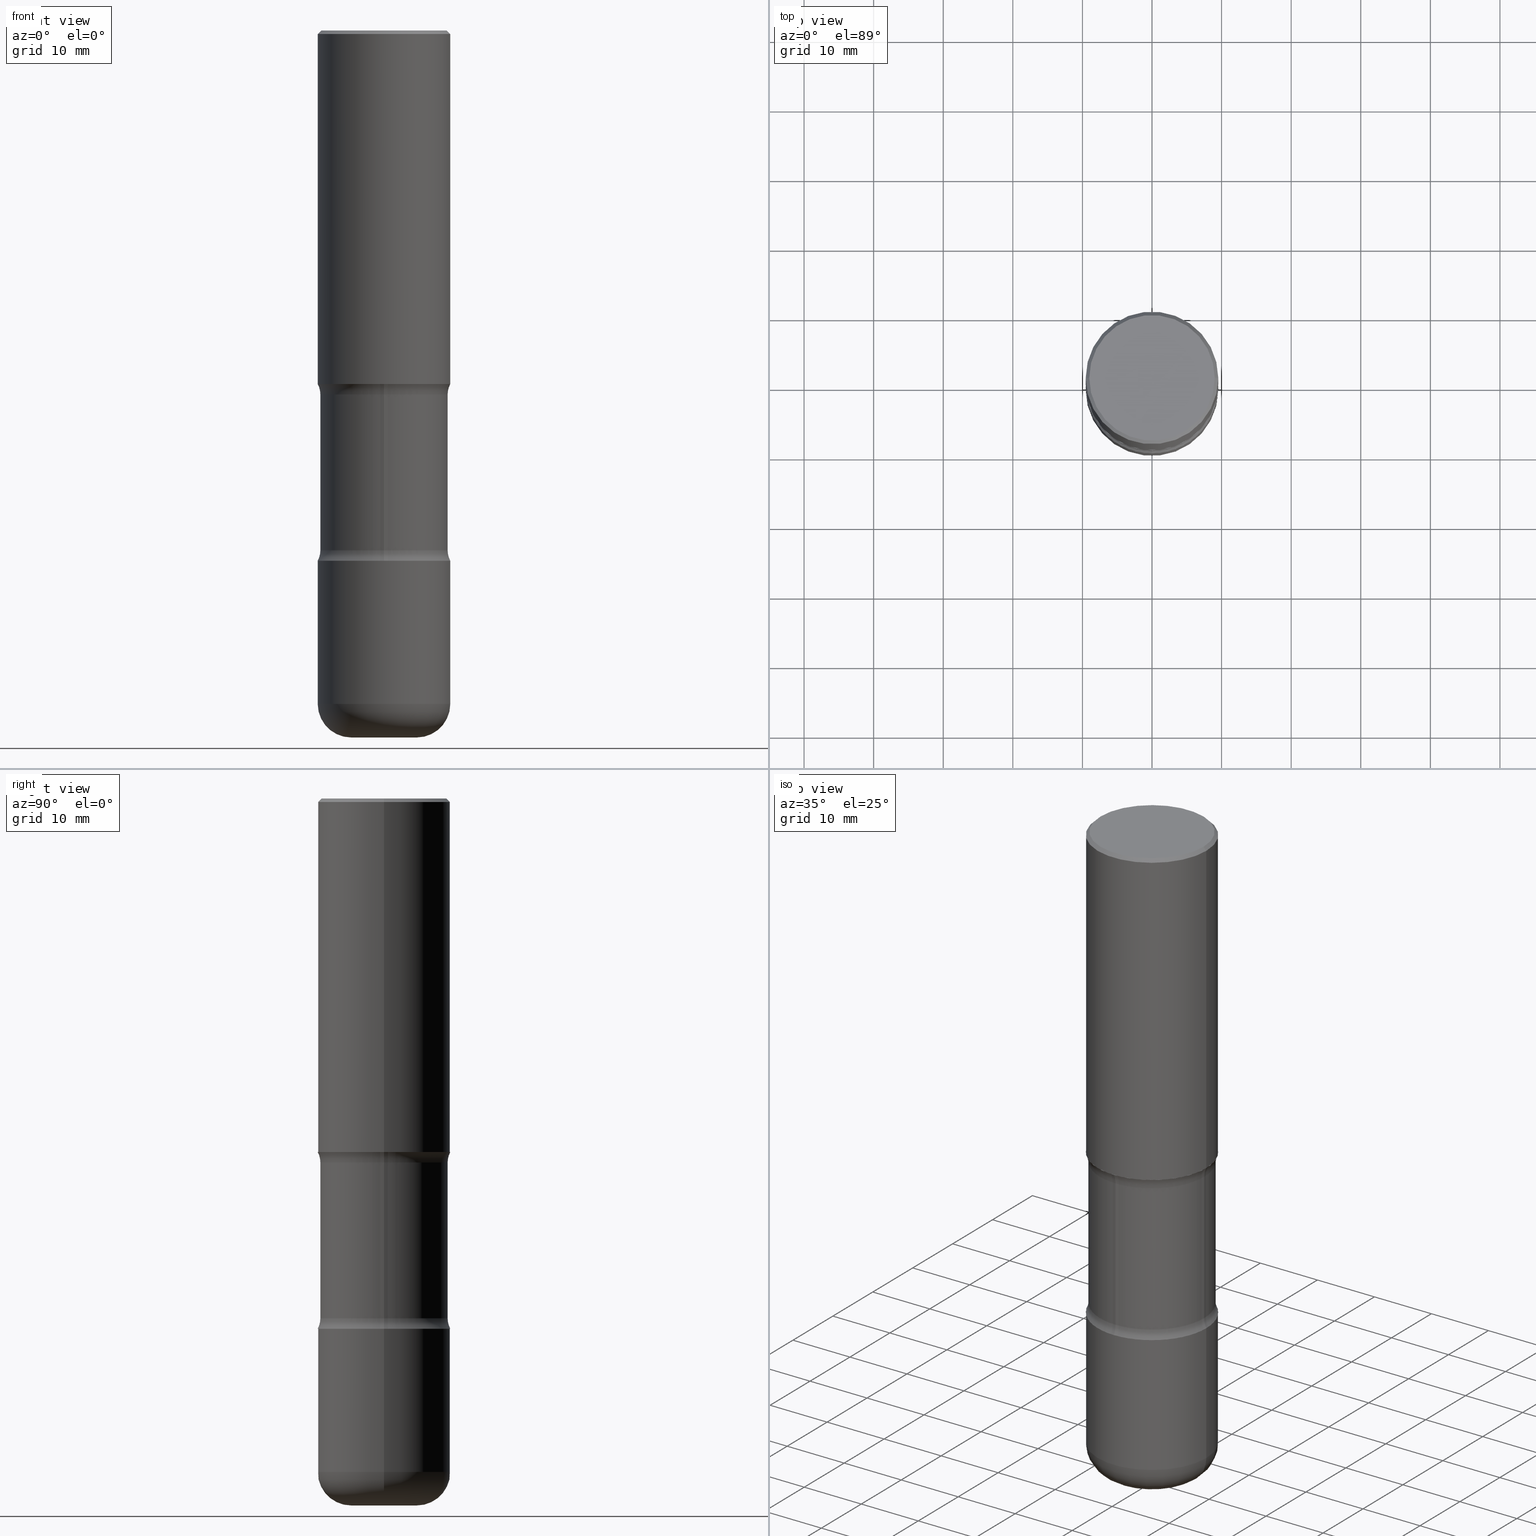
[diagram: canonical four-view strip — front | top / right | iso, engineering-drawing reading convention]
A machine part, canonical four-view strip (front | top / right | iso — engineering-drawing reading convention). The complete STEP part file that produces these views, byte-faithful:
ISO-10303-21;
HEADER;
FILE_DESCRIPTION (( 'STEP AP203' ),
    '1' );
FILE_NAME ('35803.STEP',
    '2023-03-11T07:11:10',
    ( '' ),
    ( '' ),
    'SwSTEP 2.0',
    'SolidWorks 2022',
    '' );
FILE_SCHEMA (( 'CONFIG_CONTROL_DESIGN' ));
ENDSEC;

DATA;
#1 = CARTESIAN_POINT ( 'NONE',  ( -0.3750000000000001110, -4.318427418585914679E-15, -2.000000000000000000 ) ) ;
#2 = ADVANCED_FACE ( 'NONE', ( #160 ), #32, .F. ) ;
#3 = ORIENTED_EDGE ( 'NONE', *, *, #490, .F. ) ;
#4 = DIRECTION ( 'NONE',  ( 1.000000000000000000, -6.982962677686265922E-15, 4.876176775795935793E-29 ) ) ;
#5 = PLANE ( 'NONE',  #312 ) ;
#6 = ORIENTED_EDGE ( 'NONE', *, *, #333, .T. ) ;
#7 = CIRCLE ( 'NONE', #339, 0.3599999999999998757 ) ;
#8 = DIRECTION ( 'NONE',  ( 2.438088387897960049E-29, -3.491481338843145188E-15, -1.000000000000000000 ) ) ;
#9 = VECTOR ( 'NONE', #82, 39.37007874015748143 ) ;
#10 = CARTESIAN_POINT ( 'NONE',  ( 9.772172410070132051E-29, -1.394379795992991707E-14, -3.994849186499966898 ) ) ;
#11 = ORIENTED_EDGE ( 'NONE', *, *, #389, .T. ) ;
#12 = FACE_OUTER_BOUND ( 'NONE', #55, .T. ) ;
#13 = FACE_OUTER_BOUND ( 'NONE', #21, .T. ) ;
#14 = ORIENTED_EDGE ( 'NONE', *, *, #197, .F. ) ;
#15 = ADVANCED_BREP_SHAPE_REPRESENTATION ( '35803', ( #404, #390, #625, #655, #673 ), #647 ) ;
#16 = MECHANICAL_CONTEXT ( 'NONE', #438, 'mechanical' ) ;
#17 = DIRECTION ( 'NONE',  ( 0.9993908270190957621, -6.978169709227539121E-15, -0.03489949670250019204 ) ) ;
#18 = ORIENTED_EDGE ( 'NONE', *, *, #138, .T. ) ;
#19 = FACE_OUTER_BOUND ( 'NONE', #216, .T. ) ;
#20 = APPROVAL_STATUS ( 'not_yet_approved' ) ;
#21 = EDGE_LOOP ( 'NONE', ( #716, #76, #587, #560 ) ) ;
#22 = CIRCLE ( 'NONE', #767, 0.3599999999999999312 ) ;
#23 = CONICAL_SURFACE ( 'NONE', #324, 1127.411546571505596, 1.535889741755010807 ) ;
#24 = SECURITY_CLASSIFICATION ( '', '', #428 ) ;
#25 = ADVANCED_FACE ( 'NONE', ( #155 ), #468, .T. ) ;
#26 = ORIENTED_EDGE ( 'NONE', *, *, #90, .T. ) ;
#27 = CALENDAR_DATE ( 2023, 11, 3 ) ;
#28 = DIRECTION ( 'NONE',  ( -1.000000000000000000, 6.982962677686266711E-15, 0.000000000000000000 ) ) ;
#29 = EDGE_CURVE ( 'NONE', #731, #620, #294, .T. ) ;
#30 = VERTEX_POINT ( 'NONE', #412 ) ;
#31 = ORIENTED_EDGE ( 'NONE', *, *, #333, .F. ) ;
#32 = TOROIDAL_SURFACE ( 'NONE', #110, 0.4849999999999998757, 0.1250000000000000000 ) ;
#33 = EDGE_CURVE ( 'NONE', #705, #444, #482, .T. ) ;
#34 = AXIS2_PLACEMENT_3D ( 'NONE', #741, #183, #770 ) ;
#35 = AXIS2_PLACEMENT_3D ( 'NONE', #495, #57, #434 ) ;
#36 = DIRECTION ( 'NONE',  ( 1.000000000000000000, -6.982962677686266711E-15, 0.000000000000000000 ) ) ;
#37 = ORIENTED_EDGE ( 'NONE', *, *, #631, .T. ) ;
#38 = DIRECTION ( 'NONE',  ( -2.445468806185136877E-29, 3.491481338843145188E-15, 1.000000000000000000 ) ) ;
#39 = EDGE_LOOP ( 'NONE', ( #757, #508, #301, #769 ) ) ;
#40 = DIRECTION ( 'NONE',  ( -6.982962677686266711E-15, -1.000000000000000000, 3.491481338843145583E-15 ) ) ;
#41 = CARTESIAN_POINT ( 'NONE',  ( 7.336406418555408669E-29, -1.047444401652943478E-14, -2.999999999999999556 ) ) ;
#42 = CYLINDRICAL_SURFACE ( 'NONE', #271, 0.3750000000000000555 ) ;
#43 = CIRCLE ( 'NONE', #511, 0.3599999999999998757 ) ;
#44 = AXIS2_PLACEMENT_3D ( 'NONE', #735, #530, #365 ) ;
#45 = CALENDAR_DATE ( 2023, 11, 3 ) ;
#46 = AXIS2_PLACEMENT_3D ( 'NONE', #175, #227, #291 ) ;
#47 = EDGE_CURVE ( 'NONE', #652, #566, #451, .T. ) ;
#48 = VERTEX_POINT ( 'NONE', #118 ) ;
#49 = DIRECTION ( 'NONE',  ( 1.000000000000000000, -6.982962677686265922E-15, 4.876231632511992107E-29 ) ) ;
#50 = DIRECTION ( 'NONE',  ( -2.445468806185136597E-29, 3.491481338843145583E-15, 1.000000000000000000 ) ) ;
#51 = ORIENTED_EDGE ( 'NONE', *, *, #376, .F. ) ;
#52 = DIRECTION ( 'NONE',  ( 2.448377125465744019E-29, -3.487316460102062312E-15, -1.000000000000000000 ) ) ;
#53 = EDGE_CURVE ( 'NONE', #282, #623, #751, .T. ) ;
#54 = FACE_OUTER_BOUND ( 'NONE', #395, .T. ) ;
#55 = EDGE_LOOP ( 'NONE', ( #193, #561, #678, #127 ) ) ;
#56 = DIRECTION ( 'NONE',  ( 7.105427357601001859E-15, 1.000000000000000000, -3.491481338843145583E-15 ) ) ;
#57 = DIRECTION ( 'NONE',  ( -2.445468806185136597E-29, 3.491481338843145583E-15, 1.000000000000000000 ) ) ;
#58 = PERSON_AND_ORGANIZATION ( #633, #114 ) ;
#59 = AXIS2_PLACEMENT_3D ( 'NONE', #364, #368, #107 ) ;
#60 = AXIS2_PLACEMENT_3D ( 'NONE', #335, #331, #636 ) ;
#61 = EDGE_LOOP ( 'NONE', ( #89, #145 ) ) ;
#62 = DIRECTION ( 'NONE',  ( 6.982962677686265133E-15, 1.000000000000000000, -3.035386659626959526E-15 ) ) ;
#63 = DIRECTION ( 'NONE',  ( 2.438088387897960049E-29, -3.491481338843145188E-15, -1.000000000000000000 ) ) ;
#64 = ORIENTED_EDGE ( 'NONE', *, *, #764, .F. ) ;
#65 = COORDINATED_UNIVERSAL_TIME_OFFSET ( 5, 0, .BEHIND. ) ;
#66 = EDGE_LOOP ( 'NONE', ( #88, #701 ) ) ;
#67 = DIRECTION ( 'NONE',  ( 1.000000000000000000, -6.860497997771530774E-15, 4.840849884678333879E-29 ) ) ;
#68 = CARTESIAN_POINT ( 'NONE',  ( 5.036129278209386779E-29, -7.190257896725955672E-15, -2.059371710435190295 ) ) ;
#69 = ORIENTED_EDGE ( 'NONE', *, *, #662, .T. ) ;
#70 = CARTESIAN_POINT ( 'NONE',  ( 0.000000000000000000, 0.000000000000000000, 0.000000000000000000 ) ) ;
#71 = DIRECTION ( 'NONE',  ( 1.000000000000000000, -6.982962677686265133E-15, 4.883557194083112340E-29 ) ) ;
#72 = CC_DESIGN_PERSON_AND_ORGANIZATION_ASSIGNMENT ( #214, #581, ( #776 ) ) ;
#73 = ORIENTED_EDGE ( 'NONE', *, *, #349, .F. ) ;
#74 = DIRECTION ( 'NONE',  ( 6.982962677686265922E-15, 1.000000000000000000, -3.642463991552350169E-15 ) ) ;
#75 = AXIS2_PLACEMENT_3D ( 'NONE', #363, #727, #591 ) ;
#76 = ORIENTED_EDGE ( 'NONE', *, *, #748, .T. ) ;
#77 = AXIS2_PLACEMENT_3D ( 'NONE', #377, #614, #492 ) ;
#78 = ORIENTED_EDGE ( 'NONE', *, *, #714, .T. ) ;
#79 = FACE_OUTER_BOUND ( 'NONE', #39, .T. ) ;
#80 = VERTEX_POINT ( 'NONE', #651 ) ;
#81 = ORIENTED_EDGE ( 'NONE', *, *, #805, .T. ) ;
#82 = DIRECTION ( 'NONE',  ( -2.445468806185136877E-29, 3.491481338843145188E-15, 1.000000000000000000 ) ) ;
#83 = ORIENTED_EDGE ( 'NONE', *, *, #534, .F. ) ;
#84 = CARTESIAN_POINT ( 'NONE',  ( 4.888029293089666332E-29, -6.987127556427373647E-15, -2.000000000000000000 ) ) ;
#85 = AXIS2_PLACEMENT_3D ( 'NONE', #277, #295, #783 ) ;
#86 = AXIS2_PLACEMENT_3D ( 'NONE', #710, #207, #340 ) ;
#87 = CARTESIAN_POINT ( 'NONE',  ( 4.890937612370292426E-31, -6.982962677686317493E-17, -0.02000000000000007674 ) ) ;
#88 = ORIENTED_EDGE ( 'NONE', *, *, #486, .T. ) ;
#89 = ORIENTED_EDGE ( 'NONE', *, *, #162, .F. ) ;
#90 = EDGE_CURVE ( 'NONE', #30, #222, #140, .T. ) ;
#91 = DIRECTION ( 'NONE',  ( 1.000000000000000000, -6.982962677686271444E-15, 0.000000000000000000 ) ) ;
#92 = EDGE_CURVE ( 'NONE', #464, #583, #176, .T. ) ;
#93 = ORIENTED_EDGE ( 'NONE', *, *, #211, .F. ) ;
#94 = AXIS2_PLACEMENT_3D ( 'NONE', #104, #356, #239 ) ;
#95 = CIRCLE ( 'NONE', #35, 0.1850000000000001088 ) ;
#96 = LOCAL_TIME ( 2, 11, 10.00000000000000000, #224 ) ;
#97 = CARTESIAN_POINT ( 'NONE',  ( 7.336406418555408669E-29, -1.047444401652943478E-14, -2.999999999999999556 ) ) ;
#98 = DIRECTION ( 'NONE',  ( -2.445468806185136597E-29, 3.491481338843145583E-15, 1.000000000000000000 ) ) ;
#99 = DIRECTION ( 'NONE',  ( -2.445468806185136597E-29, 3.491481338843145583E-15, 1.000000000000000000 ) ) ;
#100 = DIRECTION ( 'NONE',  ( -6.982962677686264344E-15, -1.000000000000000000, 0.000000000000000000 ) ) ;
#101 = VERTEX_POINT ( 'NONE', #540 ) ;
#102 = CARTESIAN_POINT ( 'NONE',  ( 0.4849999999999998757, -1.365388569616761104E-14, -2.940628289564810149 ) ) ;
#103 = CARTESIAN_POINT ( 'NONE',  ( 9.780897367911954317E-29, -1.393130332370666569E-14, -3.994849186499966898 ) ) ;
#104 = CARTESIAN_POINT ( 'NONE',  ( 9.317236151565370389E-29, -1.330254390099238573E-14, -3.810000000000000053 ) ) ;
#105 = PERSON_AND_ORGANIZATION_ROLE ( 'classification_officer' ) ;
#106 = EDGE_LOOP ( 'NONE', ( #6, #435 ) ) ;
#107 = DIRECTION ( 'NONE',  ( 6.982962677686265922E-15, 1.000000000000000000, -3.487316460102062312E-15 ) ) ;
#108 = DIRECTION ( 'NONE',  ( 1.000000000000000000, -6.982962677686265922E-15, 4.876176775795935793E-29 ) ) ;
#109 = ADVANCED_FACE ( 'NONE', ( #785 ), #753, .T. ) ;
#110 = AXIS2_PLACEMENT_3D ( 'NONE', #578, #405, #524 ) ;
#111 = AXIS2_PLACEMENT_3D ( 'NONE', #733, #316, #667 ) ;
#112 = CIRCLE ( 'NONE', #86, 0.1250000000000000278 ) ;
#113 = CARTESIAN_POINT ( 'NONE',  ( 7.191214752716296204E-29, -1.026714879748977264E-14, -2.940628289564810149 ) ) ;
#114 = ORGANIZATION ( 'UNSPECIFIED', 'UNSPECIFIED', '' ) ;
#115 = ORIENTED_EDGE ( 'NONE', *, *, #534, .T. ) ;
#116 = CARTESIAN_POINT ( 'NONE',  ( -1.663806245058922101E-17, -1.394794138615735415E-14, -3.994849186499966898 ) ) ;
#117 = CARTESIAN_POINT ( 'NONE',  ( 7.191042080826115211E-29, -1.026739607346438549E-14, -2.940628289564810149 ) ) ;
#118 = CARTESIAN_POINT ( 'NONE',  ( -0.1850000000000001088, -1.164471496805420174E-14, -4.000000000000000888 ) ) ;
#119 = CARTESIAN_POINT ( 'NONE',  ( -0.4849999999999998757, -6.821016529053286828E-15, -2.940628289564810149 ) ) ;
#120 = DIRECTION ( 'NONE',  ( -2.445468806185136597E-29, 3.491481338843145583E-15, 1.000000000000000000 ) ) ;
#121 = ORIENTED_EDGE ( 'NONE', *, *, #490, .T. ) ;
#122 = CARTESIAN_POINT ( 'NONE',  ( 0.000000000000000000, 0.000000000000000000, 0.000000000000000000 ) ) ;
#123 = FACE_OUTER_BOUND ( 'NONE', #761, .T. ) ;
#124 = PERSON_AND_ORGANIZATION_ROLE ( 'design_supplier' ) ;
#125 = AXIS2_PLACEMENT_3D ( 'NONE', #119, #56, #232 ) ;
#126 = AXIS2_PLACEMENT_3D ( 'NONE', #270, #706, #379 ) ;
#127 = ORIENTED_EDGE ( 'NONE', *, *, #172, .F. ) ;
#128 = CARTESIAN_POINT ( 'NONE',  ( 0.3599999999999998757, -9.704124460693012319E-15, -2.059371710435190295 ) ) ;
#129 = APPROVAL_PERSON_ORGANIZATION ( #279, #477, #548 ) ;
#130 = CARTESIAN_POINT ( 'NONE',  ( 5.036129278209386779E-29, -7.190257896725955672E-15, -2.059371710435190295 ) ) ;
#131 = ORIENTED_EDGE ( 'NONE', *, *, #280, .F. ) ;
#132 = DIRECTION ( 'NONE',  ( 1.000000000000000000, -6.982962677686264344E-15, 0.000000000000000000 ) ) ;
#133 = EDGE_CURVE ( 'NONE', #48, #282, #801, .T. ) ;
#134 = ORIENTED_EDGE ( 'NONE', *, *, #381, .F. ) ;
#135 = CYLINDRICAL_SURFACE ( 'NONE', #126, 0.3749999999999998335 ) ;
#136 = CARTESIAN_POINT ( 'NONE',  ( 2.478951750578622237E-15, 0.3549999999999997047, -1.233073106554165014E-15 ) ) ;
#137 = CLOSED_SHELL ( 'NONE', ( #522, #599, #527, #799, #318, #421, #2, #660 ) ) ;
#138 = EDGE_CURVE ( 'NONE', #796, #290, #564, .T. ) ;
#139 = VERTEX_POINT ( 'NONE', #226 ) ;
#140 = CIRCLE ( 'NONE', #359, 0.1250000000000001110 ) ;
#141 = FACE_OUTER_BOUND ( 'NONE', #698, .T. ) ;
#142 = CIRCLE ( 'NONE', #689, 0.3750000000000000555 ) ;
#143 = DIRECTION ( 'NONE',  ( 1.000000000000000000, -6.982962677686266711E-15, 0.000000000000000000 ) ) ;
#144 = EDGE_LOOP ( 'NONE', ( #382, #166, #480, #51 ) ) ;
#145 = ORIENTED_EDGE ( 'NONE', *, *, #717, .F. ) ;
#146 = CARTESIAN_POINT ( 'NONE',  ( -2.572686749164250972E-15, -0.3750000000000104361, -2.999999999999998668 ) ) ;
#147 = PERSON_AND_ORGANIZATION_ROLE ( 'design_owner' ) ;
#148 = ORIENTED_EDGE ( 'NONE', *, *, #173, .T. ) ;
#149 = LINE ( 'NONE', #352, #535 ) ;
#150 = ORIENTED_EDGE ( 'NONE', *, *, #692, .F. ) ;
#151 = ADVANCED_FACE ( 'NONE', ( #337 ), #206, .T. ) ;
#152 = LINE ( 'NONE', #766, #9 ) ;
#153 = PERSON_AND_ORGANIZATION ( #633, #114 ) ;
#154 = CALENDAR_DATE ( 2023, 11, 3 ) ;
#155 = FACE_OUTER_BOUND ( 'NONE', #529, .T. ) ;
#156 = PERSON_AND_ORGANIZATION ( #633, #114 ) ;
#157 = CIRCLE ( 'NONE', #179, 0.3750000000000000555 ) ;
#158 = CIRCLE ( 'NONE', #659, 0.3599999999999998757 ) ;
#159 = DIRECTION ( 'NONE',  ( -2.445468806185136597E-29, 3.491481338843145583E-15, 1.000000000000000000 ) ) ;
#160 = FACE_OUTER_BOUND ( 'NONE', #504, .T. ) ;
#161 =( CONVERSION_BASED_UNIT ( 'INCH', #466 ) LENGTH_UNIT ( ) NAMED_UNIT ( #252 ) );
#162 = EDGE_CURVE ( 'NONE', #80, #755, #269, .T. ) ;
#163 = EDGE_CURVE ( 'NONE', #652, #705, #585, .T. ) ;
#164 = ORIENTED_EDGE ( 'NONE', *, *, #133, .F. ) ;
#165 = CALENDAR_DATE ( 2023, 11, 3 ) ;
#166 = ORIENTED_EDGE ( 'NONE', *, *, #219, .T. ) ;
#167 = CARTESIAN_POINT ( 'NONE',  ( -0.3599999999999998757, -4.425008828949931380E-15, -2.000000000000000000 ) ) ;
#168 = CARTESIAN_POINT ( 'NONE',  ( 0.1850000000000001088, -1.525777345074454388E-14, -4.000000000000000888 ) ) ;
#169 = AXIS2_PLACEMENT_3D ( 'NONE', #613, #313, #686 ) ;
#170 = CIRCLE ( 'NONE', #611, 0.1850000000000001088 ) ;
#171 = DIRECTION ( 'NONE',  ( 1.000000000000000000, -6.982962677686266711E-15, 0.000000000000000000 ) ) ;
#172 = EDGE_CURVE ( 'NONE', #652, #347, #149, .T. ) ;
#173 = EDGE_CURVE ( 'NONE', #634, #101, #575, .T. ) ;
#174 = DIRECTION ( 'NONE',  ( -2.445468806185136597E-29, 3.491481338843145583E-15, 1.000000000000000000 ) ) ;
#175 = CARTESIAN_POINT ( 'NONE',  ( 0.1850000000000000810, -1.459439199636434413E-14, -3.810000000000000053 ) ) ;
#176 = LINE ( 'NONE', #299, #576 ) ;
#177 = DIRECTION ( 'NONE',  ( 2.448377125465743738E-29, -3.487316460102062312E-15, -1.000000000000000000 ) ) ;
#178 = CYLINDRICAL_SURFACE ( 'NONE', #594, 0.3599999999999998757 ) ;
#179 = AXIS2_PLACEMENT_3D ( 'NONE', #84, #758, #74 ) ;
#180 = TOROIDAL_SURFACE ( 'NONE', #452, 0.4849999999999998757, 0.1250000000000000555 ) ;
#181 = LOCAL_TIME ( 2, 11, 10.00000000000000000, #65 ) ;
#182 = ORIENTED_EDGE ( 'NONE', *, *, #748, .F. ) ;
#183 = DIRECTION ( 'NONE',  ( -2.445468806185136597E-29, 3.491481338843145583E-15, 1.000000000000000000 ) ) ;
#184 = CARTESIAN_POINT ( 'NONE',  ( 1.060475785271074914E-27, -1.514078366162024710E-13, -43.36492792665745100 ) ) ;
#185 = CC_DESIGN_DATE_AND_TIME_ASSIGNMENT ( #402, #649, ( #776 ) ) ;
#186 = EDGE_CURVE ( 'NONE', #566, #139, #510, .T. ) ;
#187 = EDGE_LOOP ( 'NONE', ( #378, #639 ) ) ;
#188 = LINE ( 'NONE', #116, #218 ) ;
#189 = CARTESIAN_POINT ( 'NONE',  ( 7.336406418555408669E-29, -1.047444401652943478E-14, -2.999999999999999556 ) ) ;
#190 = DIRECTION ( 'NONE',  ( -0.9993908270190957621, 6.856857904024558837E-15, -0.03489949670250019204 ) ) ;
#191 = AXIS2_PLACEMENT_3D ( 'NONE', #797, #558, #602 ) ;
#192 = AXIS2_PLACEMENT_3D ( 'NONE', #117, #483, #288 ) ;
#193 = ORIENTED_EDGE ( 'NONE', *, *, #47, .T. ) ;
#194 = CARTESIAN_POINT ( 'NONE',  ( -0.3749999999999999445, -7.809908757429059079E-15, -2.999999999999999556 ) ) ;
#195 = TOROIDAL_SURFACE ( 'NONE', #768, 0.4849999999999998757, 0.1250000000000000555 ) ;
#196 = DIRECTION ( 'NONE',  ( -6.982962677686265922E-15, -1.000000000000000000, 3.487316460102062312E-15 ) ) ;
#197 = EDGE_CURVE ( 'NONE', #642, #781, #309, .T. ) ;
#198 = ORIENTED_EDGE ( 'NONE', *, *, #29, .F. ) ;
#199 = DIRECTION ( 'NONE',  ( -2.445468806185136597E-29, 3.491481338843145583E-15, 1.000000000000000000 ) ) ;
#200 = FACE_OUTER_BOUND ( 'NONE', #671, .T. ) ;
#201 = ORIENTED_EDGE ( 'NONE', *, *, #714, .F. ) ;
#202 = CARTESIAN_POINT ( 'NONE',  ( -2.521233014180988041E-15, -0.3600000000000070366, -2.059371710435188518 ) ) ;
#203 = CARTESIAN_POINT ( 'NONE',  ( 0.3749999999999996669, -2.642516375941185662E-15, -0.02000000000000007674 ) ) ;
#204 = EDGE_CURVE ( 'NONE', #493, #583, #551, .T. ) ;
#205 = ORIENTED_EDGE ( 'NONE', *, *, #173, .F. ) ;
#206 = TOROIDAL_SURFACE ( 'NONE', #242, 0.1850000000000000810, 0.1900000000000001965 ) ;
#207 = DIRECTION ( 'NONE',  ( -1.000000000000000000, 6.982962677686265922E-15, -4.883557194083112340E-29 ) ) ;
#208 = TOROIDAL_SURFACE ( 'NONE', #75, 0.4849999999999998757, 0.1250000000000000000 ) ;
#209 = APPLICATION_PROTOCOL_DEFINITION ( 'international standard', 'config_control_design', 1994, #289 ) ;
#210 = DIRECTION ( 'NONE',  ( -2.445468806185136597E-29, 3.491481338843145583E-15, 1.000000000000000000 ) ) ;
#211 = EDGE_CURVE ( 'NONE', #681, #583, #22, .T. ) ;
#212 = EDGE_LOOP ( 'NONE', ( #432, #148, #457 ) ) ;
#213 = FACE_OUTER_BOUND ( 'NONE', #187, .T. ) ;
#214 = PERSON_AND_ORGANIZATION ( #633, #114 ) ;
#215 = DESIGN_CONTEXT ( 'detailed design', #289, 'design' ) ;
#216 = EDGE_LOOP ( 'NONE', ( #709, #330, #121, #772 ) ) ;
#217 = EDGE_LOOP ( 'NONE', ( #470, #326 ) ) ;
#218 = VECTOR ( 'NONE', #190, 39.37007874015748143 ) ;
#219 = EDGE_CURVE ( 'NONE', #566, #652, #413, .T. ) ;
#220 = TOROIDAL_SURFACE ( 'NONE', #539, 0.4849999999999998757, 0.1250000000000000000 ) ;
#221 = ORIENTED_EDGE ( 'NONE', *, *, #589, .T. ) ;
#222 = VERTEX_POINT ( 'NONE', #682 ) ;
#223 = CARTESIAN_POINT ( 'NONE',  ( 2.513866563967126856E-15, 0.3599999999999896616, -2.940628289564811038 ) ) ;
#224 = COORDINATED_UNIVERSAL_TIME_OFFSET ( 5, 0, .BEHIND. ) ;
#225 = DIRECTION ( 'NONE',  ( -2.445468806185136597E-29, 3.491481338843145583E-15, 1.000000000000000000 ) ) ;
#226 = CARTESIAN_POINT ( 'NONE',  ( -0.3599999999999998757, -4.475365733287755283E-15, -2.059371710435190295 ) ) ;
#227 = DIRECTION ( 'NONE',  ( -6.982962677686266711E-15, -1.000000000000000000, 3.491481338843145583E-15 ) ) ;
#228 = AXIS2_PLACEMENT_3D ( 'NONE', #248, #607, #49 ) ;
#229 = AXIS2_PLACEMENT_3D ( 'NONE', #621, #567, #629 ) ;
#230 = AXIS2_PLACEMENT_3D ( 'NONE', #189, #683, #196 ) ;
#231 = ADVANCED_FACE ( 'NONE', ( #430 ), #375, .F. ) ;
#232 = DIRECTION ( 'NONE',  ( -1.000000000000000000, 7.105427357601001859E-15, 0.000000000000000000 ) ) ;
#233 = DIRECTION ( 'NONE',  ( 1.000000000000000000, -6.982962677686265922E-15, 0.000000000000000000 ) ) ;
#234 = ORIENTED_EDGE ( 'NONE', *, *, #92, .T. ) ;
#235 = VERTEX_POINT ( 'NONE', #358 ) ;
#236 = DIRECTION ( 'NONE',  ( 1.000000000000000000, -6.982962677686267499E-15, 0.000000000000000000 ) ) ;
#237 = DIRECTION ( 'NONE',  ( -1.000000000000000000, 6.982962677686266711E-15, 0.000000000000000000 ) ) ;
#238 = EDGE_CURVE ( 'NONE', #347, #139, #43, .T. ) ;
#239 = DIRECTION ( 'NONE',  ( 1.000000000000000000, -6.982962677686269077E-15, 4.883557194083113462E-29 ) ) ;
#240 = CARTESIAN_POINT ( 'NONE',  ( 4.890937612370273194E-29, -6.982962677686291165E-15, -2.000000000000000000 ) ) ;
#241 = CARTESIAN_POINT ( 'NONE',  ( 0.3549999999999997047, -2.538996582575039076E-15, 1.280553747031877983E-17 ) ) ;
#242 = AXIS2_PLACEMENT_3D ( 'NONE', #726, #98, #536 ) ;
#243 = CONICAL_SURFACE ( 'NONE', #387, 0.3749999999999996669, 0.7853981633974458365 ) ;
#244 = CC_DESIGN_APPROVAL ( #574, ( #24 ) ) ;
#245 = EDGE_LOOP ( 'NONE', ( #657, #37 ) ) ;
#246 = DIRECTION ( 'NONE',  ( -2.438088387897960049E-29, 3.491481338843145188E-15, 1.000000000000000000 ) ) ;
#247 = FACE_OUTER_BOUND ( 'NONE', #217, .T. ) ;
#248 = CARTESIAN_POINT ( 'NONE',  ( -3.131554243005659264E-46, 4.471029511141341874E-32, 1.280553747030123384E-17 ) ) ;
#249 = CARTESIAN_POINT ( 'NONE',  ( -0.3750000000000000555, -9.223958699660533767E-15, -2.999999999999999556 ) ) ;
#250 = EDGE_LOOP ( 'NONE', ( #164, #78, #429, #338 ) ) ;
#251 = LINE ( 'NONE', #505, #439 ) ;
#252 = DIMENSIONAL_EXPONENTS ( 1.000000000000000000, 0.000000000000000000, 0.000000000000000000, 0.000000000000000000, 0.000000000000000000, 0.000000000000000000, 0.000000000000000000 ) ;
#253 = EDGE_CURVE ( 'NONE', #634, #532, #188, .T. ) ;
#254 = CARTESIAN_POINT ( 'NONE',  ( 4.890937612370273194E-29, -6.982962677686291165E-15, -2.000000000000000000 ) ) ;
#255 = AXIS2_PLACEMENT_3D ( 'NONE', #538, #305, #674 ) ;
#256 = ADVANCED_FACE ( 'NONE', ( #747 ), #433, .F. ) ;
#257 = ORIENTED_EDGE ( 'NONE', *, *, #162, .T. ) ;
#258 = CARTESIAN_POINT ( 'NONE',  ( 7.191214752716296204E-29, -1.026714879748977264E-14, -2.940628289564810149 ) ) ;
#259 = DIRECTION ( 'NONE',  ( 1.000000000000000000, -6.982962677686264344E-15, 0.000000000000000000 ) ) ;
#260 = ORIENTED_EDGE ( 'NONE', *, *, #163, .F. ) ;
#261 = CYLINDRICAL_SURFACE ( 'NONE', #485, 0.3599999999999998757 ) ;
#262 = DIRECTION ( 'NONE',  ( 2.448377125465743738E-29, -3.487316460102062312E-15, -1.000000000000000000 ) ) ;
#263 = EDGE_CURVE ( 'NONE', #367, #493, #669, .T. ) ;
#264 = ORIENTED_EDGE ( 'NONE', *, *, #266, .F. ) ;
#265 = DIRECTION ( 'NONE',  ( -2.445468806185136877E-29, 3.491481338843145188E-15, 1.000000000000000000 ) ) ;
#266 = EDGE_CURVE ( 'NONE', #235, #222, #471, .T. ) ;
#267 = CLOSED_SHELL ( 'NONE', ( #25, #760, #552, #704, #231, #794, #507, #707 ) ) ;
#268 = ORIENTED_EDGE ( 'NONE', *, *, #408, .F. ) ;
#269 = CIRCLE ( 'NONE', #398, 0.3750000000000000555 ) ;
#270 = CARTESIAN_POINT ( 'NONE',  ( 0.000000000000000000, 0.000000000000000000, 0.000000000000000000 ) ) ;
#271 = AXIS2_PLACEMENT_3D ( 'NONE', #668, #120, #108 ) ;
#272 = DIRECTION ( 'NONE',  ( 0.000000000000000000, 0.000000000000000000, 1.000000000000000000 ) ) ;
#273 = AXIS2_PLACEMENT_3D ( 'NONE', #553, #609, #450 ) ;
#274 = CARTESIAN_POINT ( 'NONE',  ( 1.663806245078460584E-17, -1.394794138615735415E-14, -3.994849186499966898 ) ) ;
#275 = ORIENTED_EDGE ( 'NONE', *, *, #805, .F. ) ;
#276 = CARTESIAN_POINT ( 'NONE',  ( -0.1474999999999999645, -1.293593836041385578E-14, -3.999999999999999556 ) ) ;
#277 = CARTESIAN_POINT ( 'NONE',  ( 4.890937612370273194E-29, -6.982962677686291165E-15, -2.000000000000000000 ) ) ;
#278 = DIRECTION ( 'NONE',  ( -2.445468806185136597E-29, 3.491481338843145583E-15, 1.000000000000000000 ) ) ;
#279 = PERSON_AND_ORGANIZATION ( #633, #114 ) ;
#280 = EDGE_CURVE ( 'NONE', #566, #444, #687, .T. ) ;
#281 = CARTESIAN_POINT ( 'NONE',  ( 3.386736898677888501E-15, 0.4849999999999927147, -2.059371710435191627 ) ) ;
#282 = VERTEX_POINT ( 'NONE', #307 ) ;
#283 = CLOSED_SHELL ( 'NONE', ( #386, #541, #528, #791, #467, #460 ) ) ;
#284 = AXIS2_PLACEMENT_3D ( 'NONE', #97, #520, #350 ) ;
#285 = CIRCLE ( 'NONE', #670, 0.3749999999999996669 ) ;
#286 = CC_DESIGN_SECURITY_CLASSIFICATION ( #24, ( #453 ) ) ;
#287 = DIRECTION ( 'NONE',  ( 2.448377125465743738E-29, -3.487316460102062312E-15, -1.000000000000000000 ) ) ;
#288 = DIRECTION ( 'NONE',  ( 6.982962677686265133E-15, 1.000000000000000000, -3.035386659626959526E-15 ) ) ;
#289 = APPLICATION_CONTEXT ( 'configuration controlled 3d designs of mechanical parts and assemblies' ) ;
#290 = VERTEX_POINT ( 'NONE', #550 ) ;
#291 = DIRECTION ( 'NONE',  ( 1.000000000000000000, -6.982962677686265133E-15, 0.000000000000000000 ) ) ;
#292 = PRODUCT_RELATED_PRODUCT_CATEGORY ( 'detail', '', ( #579 ) ) ;
#293 = DIRECTION ( 'NONE',  ( 7.105427357601001859E-15, 1.000000000000000000, -3.491481338843145583E-15 ) ) ;
#294 = CIRCLE ( 'NONE', #323, 0.3749999999999996669 ) ;
#295 = DIRECTION ( 'NONE',  ( -2.445468806185136597E-29, 3.491481338843145583E-15, 1.000000000000000000 ) ) ;
#296 = CARTESIAN_POINT ( 'NONE',  ( -0.3749999999999996669, 2.548781377355484352E-15, -0.02000000000000007674 ) ) ;
#297 = AXIS2_PLACEMENT_3D ( 'NONE', #724, #159, #36 ) ;
#298 = CIRCLE ( 'NONE', #192, 0.3599999999999999312 ) ;
#299 = CARTESIAN_POINT ( 'NONE',  ( -2.469779279197652534E-15, -0.3600000000000137534, -3.994849186499965565 ) ) ;
#300 = LOCAL_TIME ( 2, 11, 10.00000000000000000, #459 ) ;
#301 = ORIENTED_EDGE ( 'NONE', *, *, #376, .T. ) ;
#302 = LINE ( 'NONE', #542, #739 ) ;
#303 = DIRECTION ( 'NONE',  ( 1.000000000000000000, -6.982962677686265922E-15, 0.000000000000000000 ) ) ;
#304 = DIRECTION ( 'NONE',  ( -2.445468806185136597E-29, 3.491481338843145583E-15, 1.000000000000000000 ) ) ;
#305 = DIRECTION ( 'NONE',  ( 2.448377125465743738E-29, -3.487316460102062312E-15, -1.000000000000000000 ) ) ;
#306 = ADVANCED_FACE ( 'NONE', ( #679 ), #491, .T. ) ;
#307 = CARTESIAN_POINT ( 'NONE',  ( -0.3750000000000001110, -1.063800864189200846E-14, -3.810000000000000053 ) ) ;
#308 = DIRECTION ( 'NONE',  ( -2.445468806185136597E-29, 3.491481338843145583E-15, 1.000000000000000000 ) ) ;
#309 = CIRCLE ( 'NONE', #788, 0.3549999999999997047 ) ;
#310 = CIRCLE ( 'NONE', #512, 0.3750000000000000555 ) ;
#311 = PERSON_AND_ORGANIZATION ( #633, #114 ) ;
#312 = AXIS2_PLACEMENT_3D ( 'NONE', #136, #63, #384 ) ;
#313 = DIRECTION ( 'NONE',  ( 2.438088387897960049E-29, -3.491481338843145188E-15, -1.000000000000000000 ) ) ;
#314 = CARTESIAN_POINT ( 'NONE',  ( 0.3749999999999996669, -2.642516375941185662E-15, -0.02000000000000007674 ) ) ;
#315 = ORIENTED_EDGE ( 'NONE', *, *, #238, .T. ) ;
#316 = DIRECTION ( 'NONE',  ( -2.445468806185136597E-29, 3.491481338843145583E-15, 1.000000000000000000 ) ) ;
#317 = DIRECTION ( 'NONE',  ( -2.445468806185136597E-29, 3.491481338843145583E-15, 1.000000000000000000 ) ) ;
#318 = ADVANCED_FACE ( 'NONE', ( #806 ), #803, .T. ) ;
#319 = ORIENTED_EDGE ( 'NONE', *, *, #403, .F. ) ;
#320 = DIRECTION ( 'NONE',  ( -2.445468806185136597E-29, 3.491481338843145583E-15, 1.000000000000000000 ) ) ;
#321 = DIRECTION ( 'NONE',  ( 6.982962677686265922E-15, 1.000000000000000000, -2.913971193241880372E-15 ) ) ;
#322 = ORIENTED_EDGE ( 'NONE', *, *, #29, .T. ) ;
#323 = AXIS2_PLACEMENT_3D ( 'NONE', #87, #278, #719 ) ;
#324 = AXIS2_PLACEMENT_3D ( 'NONE', #184, #680, #237 ) ;
#325 = LOCAL_TIME ( 2, 11, 10.00000000000000000, #708 ) ;
#326 = ORIENTED_EDGE ( 'NONE', *, *, #697, .T. ) ;
#327 = CARTESIAN_POINT ( 'NONE',  ( 5.033393630818961472E-29, -7.194175499492426092E-15, -2.059371710435190295 ) ) ;
#328 = DIRECTION ( 'NONE',  ( 6.982962677686265133E-15, 1.000000000000000000, -3.035386659626960315E-15 ) ) ;
#329 = EDGE_LOOP ( 'NONE', ( #779, #366, #782, #315 ) ) ;
#330 = ORIENTED_EDGE ( 'NONE', *, *, #263, .F. ) ;
#331 = DIRECTION ( 'NONE',  ( -2.438088387897960049E-29, 3.491481338843145188E-15, 1.000000000000000000 ) ) ;
#332 =( NAMED_UNIT ( * ) SI_UNIT ( $, .STERADIAN. ) SOLID_ANGLE_UNIT ( ) );
#333 = EDGE_CURVE ( 'NONE', #781, #642, #713, .T. ) ;
#334 = ORIENTED_EDGE ( 'NONE', *, *, #389, .F. ) ;
#335 = CARTESIAN_POINT ( 'NONE',  ( 4.890937612370273194E-29, -6.982962677686291165E-15, -2.000000000000000000 ) ) ;
#336 =( NAMED_UNIT ( * ) PLANE_ANGLE_UNIT ( ) SI_UNIT ( $, .RADIAN. ) );
#337 = FACE_OUTER_BOUND ( 'NONE', #718, .T. ) ;
#338 = ORIENTED_EDGE ( 'NONE', *, *, #53, .F. ) ;
#339 = AXIS2_PLACEMENT_3D ( 'NONE', #488, #481, #236 ) ;
#340 = DIRECTION ( 'NONE',  ( -6.982962677686265133E-15, -1.000000000000000000, 0.000000000000000000 ) ) ;
#341 = AXIS2_PLACEMENT_3D ( 'NONE', #411, #653, #456 ) ;
#342 = DIRECTION ( 'NONE',  ( 2.445468806185136597E-29, -3.491481338843145583E-15, -1.000000000000000000 ) ) ;
#343 = ORIENTED_EDGE ( 'NONE', *, *, #631, .F. ) ;
#344 = EDGE_CURVE ( 'NONE', #30, #681, #436, .T. ) ;
#345 = ORIENTED_EDGE ( 'NONE', *, *, #420, .T. ) ;
#346 =( LENGTH_UNIT ( ) NAMED_UNIT ( * ) SI_UNIT ( $, .METRE. ) );
#347 = VERTEX_POINT ( 'NONE', #128 ) ;
#348 = AXIS2_PLACEMENT_3D ( 'NONE', #327, #695, #494 ) ;
#349 = EDGE_CURVE ( 'NONE', #282, #765, #302, .T. ) ;
#350 = DIRECTION ( 'NONE',  ( 1.000000000000000000, -6.982962677686266711E-15, 0.000000000000000000 ) ) ;
#351 = CC_DESIGN_DATE_AND_TIME_ASSIGNMENT ( #372, #422, ( #24 ) ) ;
#352 = CARTESIAN_POINT ( 'NONE',  ( 0.3599999999999998757, -9.496829241653347023E-15, -2.000000000000000000 ) ) ;
#353 = CARTESIAN_POINT ( 'NONE',  ( 9.781875224740545266E-29, -1.396592535537258075E-14, -3.999999999999999556 ) ) ;
#354 = EDGE_LOOP ( 'NONE', ( #182, #514, #586, #685 ) ) ;
#355 = CARTESIAN_POINT ( 'NONE',  ( 4.890937612370273194E-29, -6.982962677686291165E-15, -2.000000000000000000 ) ) ;
#356 = DIRECTION ( 'NONE',  ( -2.445468806185136597E-29, 3.491481338843145583E-15, 1.000000000000000000 ) ) ;
#357 = APPROVAL_STATUS ( 'not_yet_approved' ) ;
#358 = CARTESIAN_POINT ( 'NONE',  ( -2.572686749164275032E-15, -0.3750000000000070499, -1.999999999999998668 ) ) ;
#359 = AXIS2_PLACEMENT_3D ( 'NONE', #281, #547, #100 ) ;
#360 = CARTESIAN_POINT ( 'NONE',  ( 4.890937612370292426E-31, -6.982962677686317493E-17, -0.02000000000000007674 ) ) ;
#361 = AXIS2_PLACEMENT_3D ( 'NONE', #798, #50, #303 ) ;
#362 = DIRECTION ( 'NONE',  ( 6.982962677686265922E-15, 1.000000000000000000, -3.642463991552350169E-15 ) ) ;
#363 = CARTESIAN_POINT ( 'NONE',  ( 7.191214752716296204E-29, -1.026714879748977264E-14, -2.940628289564810149 ) ) ;
#364 = CARTESIAN_POINT ( 'NONE',  ( 4.890937612370273194E-29, -6.982962677686291165E-15, -2.000000000000000000 ) ) ;
#365 = DIRECTION ( 'NONE',  ( -1.000000000000000000, 7.105427357601001859E-15, 0.000000000000000000 ) ) ;
#366 = ORIENTED_EDGE ( 'NONE', *, *, #415, .F. ) ;
#367 = VERTEX_POINT ( 'NONE', #792 ) ;
#368 = DIRECTION ( 'NONE',  ( 2.448377125465743738E-29, -3.487316460102062312E-15, -1.000000000000000000 ) ) ;
#369 = CYLINDRICAL_SURFACE ( 'NONE', #740, 0.3599999999999998757 ) ;
#370 = VECTOR ( 'NONE', #17, 39.37007874015748143 ) ;
#371 = CIRCLE ( 'NONE', #725, 0.1475000000000000755 ) ;
#372 = DATE_AND_TIME ( #45, #181 ) ;
#373 = VECTOR ( 'NONE', #754, 39.37007874015748143 ) ;
#374 = EDGE_LOOP ( 'NONE', ( #64, #31, #746, #570 ) ) ;
#375 = PLANE ( 'NONE',  #59 ) ;
#376 = EDGE_CURVE ( 'NONE', #139, #347, #7, .T. ) ;
#377 = CARTESIAN_POINT ( 'NONE',  ( 1.060475785271074914E-27, -1.514078366162024710E-13, -43.36492792665745100 ) ) ;
#378 = ORIENTED_EDGE ( 'NONE', *, *, #33, .F. ) ;
#379 = DIRECTION ( 'NONE',  ( 1.000000000000000000, -6.982962677686265922E-15, 4.876176775795935793E-29 ) ) ;
#380 = CARTESIAN_POINT ( 'NONE',  ( 9.781875224740547508E-29, -1.396592535537258391E-14, -4.000000000000000888 ) ) ;
#381 = EDGE_CURVE ( 'NONE', #765, #580, #777, .T. ) ;
#382 = ORIENTED_EDGE ( 'NONE', *, *, #186, .F. ) ;
#383 = DIRECTION ( 'NONE',  ( 6.982962677686265922E-15, 1.000000000000000000, -3.487316460102062312E-15 ) ) ;
#384 = DIRECTION ( 'NONE',  ( -1.000000000000000000, 6.982962677686265922E-15, -4.876176775795935793E-29 ) ) ;
#385 = CIRCLE ( 'NONE', #348, 0.3599999999999998757 ) ;
#386 = ADVANCED_FACE ( 'NONE', ( #141 ), #442, .T. ) ;
#387 = AXIS2_PLACEMENT_3D ( 'NONE', #712, #342, #28 ) ;
#388 = ORIENTED_EDGE ( 'NONE', *, *, #764, .T. ) ;
#389 = EDGE_CURVE ( 'NONE', #623, #580, #251, .T. ) ;
#390 = MANIFOLD_SOLID_BREP ( 'Body-Move/Copy2[2]', #283 ) ;
#391 = EDGE_LOOP ( 'NONE', ( #275, #201 ) ) ;
#392 = FACE_OUTER_BOUND ( 'NONE', #61, .T. ) ;
#393 = DATE_AND_TIME ( #27, #325 ) ;
#394 = DIRECTION ( 'NONE',  ( -2.445468806185136877E-29, 3.491481338843145188E-15, 1.000000000000000000 ) ) ;
#395 = EDGE_LOOP ( 'NONE', ( #14, #388, #322, #590 ) ) ;
#396 = PLANE ( 'NONE',  #60 ) ;
#397 = EDGE_CURVE ( 'NONE', #290, #347, #424, .T. ) ;
#398 = AXIS2_PLACEMENT_3D ( 'NONE', #664, #210, #720 ) ;
#399 = CARTESIAN_POINT ( 'NONE',  ( 9.772172410070132051E-29, -1.394379795992991707E-14, -3.994849186499966898 ) ) ;
#400 = VECTOR ( 'NONE', #394, 39.37007874015748143 ) ;
#401 = CIRCLE ( 'NONE', #46, 0.1900000000000001688 ) ;
#402 = DATE_AND_TIME ( #711, #300 ) ;
#403 = EDGE_CURVE ( 'NONE', #222, #235, #157, .T. ) ;
#404 = MANIFOLD_SOLID_BREP ( 'Body-Move/Copy2[1]', #496 ) ;
#405 = DIRECTION ( 'NONE',  ( -2.445468806185136597E-29, 3.491481338843145583E-15, 1.000000000000000000 ) ) ;
#406 = CARTESIAN_POINT ( 'NONE',  ( 0.000000000000000000, 0.000000000000000000, 0.000000000000000000 ) ) ;
#407 = ORIENTED_EDGE ( 'NONE', *, *, #47, .F. ) ;
#408 = EDGE_CURVE ( 'NONE', #30, #464, #385, .T. ) ;
#409 = PERSON_AND_ORGANIZATION_ROLE ( 'creator' ) ;
#410 = ORIENTED_EDGE ( 'NONE', *, *, #204, .T. ) ;
#411 = CARTESIAN_POINT ( 'NONE',  ( 5.036129278209386779E-29, -7.190257896725955672E-15, -2.059371710435190295 ) ) ;
#412 = CARTESIAN_POINT ( 'NONE',  ( 2.513866563967105162E-15, 0.3599999999999926592, -2.059371710435191627 ) ) ;
#413 = CIRCLE ( 'NONE', #111, 0.3599999999999999312 ) ;
#414 = CARTESIAN_POINT ( 'NONE',  ( -3.131554243005659264E-46, 4.471029511141341874E-32, 1.280553747030123384E-17 ) ) ;
#415 = EDGE_CURVE ( 'NONE', #290, #796, #498, .T. ) ;
#416 = AXIS2_PLACEMENT_3D ( 'NONE', #617, #199, #572 ) ;
#417 = DIRECTION ( 'NONE',  ( -2.445468806185136597E-29, 3.491481338843145583E-15, 1.000000000000000000 ) ) ;
#418 = FACE_OUTER_BOUND ( 'NONE', #487, .T. ) ;
#419 = DIRECTION ( 'NONE',  ( 6.860497997771528407E-15, 1.000000000000000000, 0.000000000000000000 ) ) ;
#420 = EDGE_CURVE ( 'NONE', #755, #620, #152, .T. ) ;
#421 = ADVANCED_FACE ( 'NONE', ( #213 ), #691, .T. ) ;
#422 = DATE_TIME_ROLE ( 'classification_date' ) ;
#423 = CARTESIAN_POINT ( 'NONE',  ( 5.036129278209386779E-29, -7.190257896725955672E-15, -2.059371710435190295 ) ) ;
#424 = CIRCLE ( 'NONE', #702, 0.1250000000000000278 ) ;
#425 = FACE_OUTER_BOUND ( 'NONE', #144, .T. ) ;
#426 = CIRCLE ( 'NONE', #361, 0.1475000000000000755 ) ;
#427 = CC_DESIGN_APPROVAL ( #619, ( #776 ) ) ;
#428 = SECURITY_CLASSIFICATION_LEVEL ( 'unclassified' ) ;
#429 = ORIENTED_EDGE ( 'NONE', *, *, #601, .T. ) ;
#430 = FACE_OUTER_BOUND ( 'NONE', #448, .T. ) ;
#431 = CARTESIAN_POINT ( 'NONE',  ( -0.3749999999999996669, 2.548781377355484352E-15, -0.02000000000000007674 ) ) ;
#432 = ORIENTED_EDGE ( 'NONE', *, *, #253, .F. ) ;
#433 = PLANE ( 'NONE',  #169 ) ;
#434 = DIRECTION ( 'NONE',  ( 1.000000000000000000, -6.982962677686271444E-15, 0.000000000000000000 ) ) ;
#435 = ORIENTED_EDGE ( 'NONE', *, *, #197, .T. ) ;
#436 = LINE ( 'NONE', #744, #497 ) ;
#437 = CARTESIAN_POINT ( 'NONE',  ( -0.3749999999999999445, -8.618608931312003514E-16, -2.000000000000000000 ) ) ;
#438 = APPLICATION_CONTEXT ( 'configuration controlled 3d designs of mechanical parts and assemblies' ) ;
#439 = VECTOR ( 'NONE', #265, 39.37007874015748143 ) ;
#440 = AXIS2_PLACEMENT_3D ( 'NONE', #562, #8, #752 ) ;
#441 = ORIENTED_EDGE ( 'NONE', *, *, #601, .F. ) ;
#442 = CYLINDRICAL_SURFACE ( 'NONE', #644, 0.3749999999999998335 ) ;
#443 = DIRECTION ( 'NONE',  ( 2.448377125465743738E-29, -3.487316460102062312E-15, -1.000000000000000000 ) ) ;
#444 = VERTEX_POINT ( 'NONE', #194 ) ;
#445 = DIRECTION ( 'NONE',  ( -6.982962677686266711E-15, -1.000000000000000000, 3.491481338843145583E-15 ) ) ;
#446 = FACE_OUTER_BOUND ( 'NONE', #391, .T. ) ;
#447 = CC_DESIGN_PERSON_AND_ORGANIZATION_ASSIGNMENT ( #311, #105, ( #24 ) ) ;
#448 = EDGE_LOOP ( 'NONE', ( #319, #264 ) ) ;
#449 = DIRECTION ( 'NONE',  ( -2.445468806185136597E-29, 3.491481338843145583E-15, 1.000000000000000000 ) ) ;
#450 = DIRECTION ( 'NONE',  ( 1.000000000000000000, -6.982962677686265922E-15, 4.876176775795935793E-29 ) ) ;
#451 = CIRCLE ( 'NONE', #723, 0.3599999999999999312 ) ;
#452 = AXIS2_PLACEMENT_3D ( 'NONE', #68, #603, #563 ) ;
#453 = PRODUCT_DEFINITION_FORMATION_WITH_SPECIFIED_SOURCE ( 'ANY', '', #579, .NOT_KNOWN. ) ;
#454 = EDGE_LOOP ( 'NONE', ( #569, #606, #69, #150 ) ) ;
#455 = CARTESIAN_POINT ( 'NONE',  ( 4.890937612370273194E-29, -6.982962677686291165E-15, -2.000000000000000000 ) ) ;
#456 = DIRECTION ( 'NONE',  ( 1.000000000000000000, -6.982962677686265133E-15, 4.883557194083112340E-29 ) ) ;
#457 = ORIENTED_EDGE ( 'NONE', *, *, #635, .F. ) ;
#458 = FACE_OUTER_BOUND ( 'NONE', #454, .T. ) ;
#459 = COORDINATED_UNIVERSAL_TIME_OFFSET ( 5, 0, .BEHIND. ) ;
#460 = ADVANCED_FACE ( 'NONE', ( #458 ), #135, .T. ) ;
#461 = EDGE_LOOP ( 'NONE', ( #557, #410, #221, #3 ) ) ;
#462 = DIRECTION ( 'NONE',  ( -2.445468806185136597E-29, 3.491481338843145583E-15, 1.000000000000000000 ) ) ;
#463 = AXIS2_PLACEMENT_3D ( 'NONE', #478, #67, #419 ) ;
#464 = VERTEX_POINT ( 'NONE', #202 ) ;
#465 = VECTOR ( 'NONE', #38, 39.37007874015748143 ) ;
#466 = LENGTH_MEASURE_WITH_UNIT ( LENGTH_MEASURE( 0.02539999999999999897 ), #346 );
#467 = ADVANCED_FACE ( 'NONE', ( #392 ), #396, .F. ) ;
#468 = CYLINDRICAL_SURFACE ( 'NONE', #787, 0.3599999999999998757 ) ;
#469 = CC_DESIGN_PERSON_AND_ORGANIZATION_ASSIGNMENT ( #156, #147, ( #579 ) ) ;
#470 = ORIENTED_EDGE ( 'NONE', *, *, #263, .T. ) ;
#471 = CIRCLE ( 'NONE', #523, 0.3750000000000000555 ) ;
#472 = DIRECTION ( 'NONE',  ( -2.445468806185136877E-29, 3.491481338843145188E-15, 1.000000000000000000 ) ) ;
#473 = AXIS2_PLACEMENT_3D ( 'NONE', #360, #665, #786 ) ;
#474 = CARTESIAN_POINT ( 'NONE',  ( 0.3750000000000000555, -1.309305502066178637E-14, -2.999999999999999556 ) ) ;
#475 = CARTESIAN_POINT ( 'NONE',  ( 7.191042080826115211E-29, -1.026739607346438549E-14, -2.940628289564810149 ) ) ;
#476 = DIRECTION ( 'NONE',  ( 1.000000000000000000, -6.982962677686267499E-15, 0.000000000000000000 ) ) ;
#477 = APPROVAL ( #521, 'UNSPECIFIED' ) ;
#478 = CARTESIAN_POINT ( 'NONE',  ( -3.327341528919120012E-15, -0.4850000000000101452, -2.940628289564808373 ) ) ;
#479 = CARTESIAN_POINT ( 'NONE',  ( -0.3599999999999999312, -7.759551853091235175E-15, -2.940628289564810149 ) ) ;
#480 = ORIENTED_EDGE ( 'NONE', *, *, #172, .T. ) ;
#481 = DIRECTION ( 'NONE',  ( -2.445468806185136597E-29, 3.491481338843145583E-15, 1.000000000000000000 ) ) ;
#482 = CIRCLE ( 'NONE', #284, 0.3750000000000000555 ) ;
#483 = DIRECTION ( 'NONE',  ( 2.448377125465743738E-29, -3.487316460102062312E-15, -1.000000000000000000 ) ) ;
#484 = ORIENTED_EDGE ( 'NONE', *, *, #280, .T. ) ;
#485 = AXIS2_PLACEMENT_3D ( 'NONE', #762, #449, #699 ) ;
#486 = EDGE_CURVE ( 'NONE', #580, #765, #577, .T. ) ;
#487 = EDGE_LOOP ( 'NONE', ( #115, #571, #549, #334 ) ) ;
#488 = CARTESIAN_POINT ( 'NONE',  ( 5.036129278209386779E-29, -7.190257896725955672E-15, -2.059371710435190295 ) ) ;
#489 = DIRECTION ( 'NONE',  ( 6.982962677686265133E-15, 1.000000000000000000, -3.794233324533699901E-15 ) ) ;
#490 = EDGE_CURVE ( 'NONE', #367, #681, #112, .T. ) ;
#491 = CYLINDRICAL_SURFACE ( 'NONE', #624, 0.3750000000000000555 ) ;
#492 = DIRECTION ( 'NONE',  ( -1.000000000000000000, 6.982962677686266711E-15, 0.000000000000000000 ) ) ;
#493 = VERTEX_POINT ( 'NONE', #146 ) ;
#494 = DIRECTION ( 'NONE',  ( 6.982962677686265133E-15, 1.000000000000000000, -3.794233324533699901E-15 ) ) ;
#495 = CARTESIAN_POINT ( 'NONE',  ( 9.781875224740547508E-29, -1.396592535537258391E-14, -4.000000000000000888 ) ) ;
#496 = CLOSED_SHELL ( 'NONE', ( #677, #615, #151, #780, #109, #306, #256, #773 ) ) ;
#497 = VECTOR ( 'NONE', #52, 39.37007874015748143 ) ;
#498 = CIRCLE ( 'NONE', #703, 0.3750000000000000555 ) ;
#499 = CIRCLE ( 'NONE', #229, 0.1250000000000001110 ) ;
#500 = LOCAL_TIME ( 2, 11, 10.00000000000000000, #738 ) ;
#501 = ORIENTED_EDGE ( 'NONE', *, *, #33, .T. ) ;
#502 = DIRECTION ( 'NONE',  ( 2.448377125465743738E-29, -3.487316460102062312E-15, -1.000000000000000000 ) ) ;
#503 = FACE_OUTER_BOUND ( 'NONE', #461, .T. ) ;
#504 = EDGE_LOOP ( 'NONE', ( #131, #407, #518, #501 ) ) ;
#505 = CARTESIAN_POINT ( 'NONE',  ( 0.3750000000000000555, -2.618611004132350016E-15, 1.828566290923476203E-29 ) ) ;
#506 = CARTESIAN_POINT ( 'NONE',  ( 7.191214752716296204E-29, -1.026714879748977264E-14, -2.940628289564810149 ) ) ;
#507 = ADVANCED_FACE ( 'NONE', ( #19 ), #537, .F. ) ;
#508 = ORIENTED_EDGE ( 'NONE', *, *, #604, .T. ) ;
#509 = DIRECTION ( 'NONE',  ( -2.445468806185136597E-29, 3.491481338843145583E-15, 1.000000000000000000 ) ) ;
#510 = LINE ( 'NONE', #167, #400 ) ;
#511 = AXIS2_PLACEMENT_3D ( 'NONE', #423, #304, #672 ) ;
#512 = AXIS2_PLACEMENT_3D ( 'NONE', #556, #317, #143 ) ;
#513 = EDGE_CURVE ( 'NONE', #464, #235, #499, .T. ) ;
#514 = ORIENTED_EDGE ( 'NONE', *, *, #513, .T. ) ;
#515 = DIRECTION ( 'NONE',  ( 1.000000000000000000, -6.982962677686261189E-15, 0.000000000000000000 ) ) ;
#516 = DIRECTION ( 'NONE',  ( 1.000000000000000000, 0.000000000000000000, 0.000000000000000000 ) ) ;
#517 = UNCERTAINTY_MEASURE_WITH_UNIT (LENGTH_MEASURE( 1.000000000000000082E-05 ), #161, 'distance_accuracy_value', 'NONE');
#518 = ORIENTED_EDGE ( 'NONE', *, *, #163, .T. ) ;
#519 = APPROVAL_DATE_TIME ( #393, #619 ) ;
#520 = DIRECTION ( 'NONE',  ( -2.445468806185136597E-29, 3.491481338843145583E-15, 1.000000000000000000 ) ) ;
#521 = APPROVAL_STATUS ( 'not_yet_approved' ) ;
#522 = ADVANCED_FACE ( 'NONE', ( #12 ), #261, .T. ) ;
#523 = AXIS2_PLACEMENT_3D ( 'NONE', #555, #729, #362 ) ;
#524 = DIRECTION ( 'NONE',  ( 1.000000000000000000, -6.982962677686266711E-15, 4.883557194083112901E-29 ) ) ;
#525 = CIRCLE ( 'NONE', #802, 0.3750000000000000555 ) ;
#526 = CC_DESIGN_APPROVAL ( #477, ( #453 ) ) ;
#527 = ADVANCED_FACE ( 'NONE', ( #79 ), #610, .F. ) ;
#528 = ADVANCED_FACE ( 'NONE', ( #643 ), #243, .T. ) ;
#529 = EDGE_LOOP ( 'NONE', ( #630, #234, #93, #595 ) ) ;
#530 = DIRECTION ( 'NONE',  ( 7.105427357601001859E-15, 1.000000000000000000, -3.491481338843145583E-15 ) ) ;
#531 = APPROVAL_DATE_TIME ( #722, #574 ) ;
#532 = VERTEX_POINT ( 'NONE', #276 ) ;
#533 = DIRECTION ( 'NONE',  ( -0.7071067811865457964, 2.468850131082238917E-15, -0.7071067811865492381 ) ) ;
#534 = EDGE_CURVE ( 'NONE', #623, #282, #142, .T. ) ;
#535 = VECTOR ( 'NONE', #472, 39.37007874015748143 ) ;
#536 = DIRECTION ( 'NONE',  ( 1.000000000000000000, -6.982962677686269077E-15, 4.883557194083113462E-29 ) ) ;
#537 = TOROIDAL_SURFACE ( 'NONE', #756, 0.4849999999999998757, 0.1250000000000000000 ) ;
#538 = CARTESIAN_POINT ( 'NONE',  ( 5.036129278209386779E-29, -7.190257896725955672E-15, -2.059371710435190295 ) ) ;
#539 = AXIS2_PLACEMENT_3D ( 'NONE', #506, #759, #763 ) ;
#540 = CARTESIAN_POINT ( 'NONE',  ( 0.1474999999999999645, -1.497784881004388002E-14, -3.999999999999999556 ) ) ;
#541 = ADVANCED_FACE ( 'NONE', ( #54 ), #715, .T. ) ;
#542 = CARTESIAN_POINT ( 'NONE',  ( -0.3750000000000000555, 2.664535259100376091E-15, -1.844600658845589598E-29 ) ) ;
#543 = CARTESIAN_POINT ( 'NONE',  ( 0.3599999999999999312, -1.278101536145682770E-14, -2.940628289564810149 ) ) ;
#544 = ORIENTED_EDGE ( 'NONE', *, *, #415, .T. ) ;
#545 = DIRECTION ( 'NONE',  ( -2.445468806185136877E-29, 3.491481338843145188E-15, 1.000000000000000000 ) ) ;
#546 = FACE_OUTER_BOUND ( 'NONE', #616, .T. ) ;
#547 = DIRECTION ( 'NONE',  ( -1.000000000000000000, 6.982962677686265922E-15, -4.883557194083112340E-29 ) ) ;
#548 = APPROVAL_ROLE ( '' ) ;
#549 = ORIENTED_EDGE ( 'NONE', *, *, #486, .F. ) ;
#550 = CARTESIAN_POINT ( 'NONE',  ( 0.3750000000000001110, -9.601573681818640393E-15, -2.000000000000000000 ) ) ;
#551 = CIRCLE ( 'NONE', #463, 0.1250000000000000278 ) ;
#552 = ADVANCED_FACE ( 'NONE', ( #597 ), #778, .F. ) ;
#553 = CARTESIAN_POINT ( 'NONE',  ( -7.161073312030320646E-28, -1.305247730850476631E-13, -4.000000000000000000 ) ) ;
#554 = CIRCLE ( 'NONE', #658, 0.3750000000000000555 ) ;
#555 = CARTESIAN_POINT ( 'NONE',  ( 4.888029293089666332E-29, -6.987127556427373647E-15, -2.000000000000000000 ) ) ;
#556 = CARTESIAN_POINT ( 'NONE',  ( 7.336406418555408669E-29, -1.047444401652943478E-14, -2.999999999999999556 ) ) ;
#557 = ORIENTED_EDGE ( 'NONE', *, *, #697, .F. ) ;
#558 = DIRECTION ( 'NONE',  ( 2.448377125465743738E-29, -3.487316460102062312E-15, -1.000000000000000000 ) ) ;
#559 = LINE ( 'NONE', #203, #373 ) ;
#560 = ORIENTED_EDGE ( 'NONE', *, *, #589, .F. ) ;
#561 = ORIENTED_EDGE ( 'NONE', *, *, #186, .T. ) ;
#562 = CARTESIAN_POINT ( 'NONE',  ( 7.336406418555408669E-29, -1.047444401652943478E-14, -2.999999999999999556 ) ) ;
#563 = DIRECTION ( 'NONE',  ( 6.982962677686265922E-15, 1.000000000000000000, -3.487316460102062312E-15 ) ) ;
#564 = CIRCLE ( 'NONE', #85, 0.3750000000000000555 ) ;
#565 = APPROVAL_PERSON_ORGANIZATION ( #153, #619, #641 ) ;
#566 = VERTEX_POINT ( 'NONE', #479 ) ;
#567 = DIRECTION ( 'NONE',  ( 1.000000000000000000, -6.860497997771530774E-15, 4.840849884678333879E-29 ) ) ;
#568 = DIRECTION ( 'NONE',  ( 2.448377125465743738E-29, -3.487316460102062312E-15, -1.000000000000000000 ) ) ;
#569 = ORIENTED_EDGE ( 'NONE', *, *, #420, .F. ) ;
#570 = ORIENTED_EDGE ( 'NONE', *, *, #692, .T. ) ;
#571 = ORIENTED_EDGE ( 'NONE', *, *, #349, .T. ) ;
#572 = DIRECTION ( 'NONE',  ( 1.000000000000000000, -6.982962677686266711E-15, 0.000000000000000000 ) ) ;
#573 = APPLICATION_PROTOCOL_DEFINITION ( 'international standard', 'config_control_design', 1994, #438 ) ;
#574 = APPROVAL ( #357, 'UNSPECIFIED' ) ;
#575 = LINE ( 'NONE', #274, #370 ) ;
#576 = VECTOR ( 'NONE', #795, 39.37007874015748143 ) ;
#577 = CIRCLE ( 'NONE', #416, 0.3750000000000000555 ) ;
#578 = CARTESIAN_POINT ( 'NONE',  ( 7.191214752716296204E-29, -1.026714879748977264E-14, -2.940628289564810149 ) ) ;
#579 = PRODUCT ( '35803', '35803', '', ( #16 ) ) ;
#580 = VERTEX_POINT ( 'NONE', #474 ) ;
#581 = PERSON_AND_ORGANIZATION_ROLE ( 'creator' ) ;
#582 = CC_DESIGN_PERSON_AND_ORGANIZATION_ASSIGNMENT ( #666, #124, ( #453 ) ) ;
#583 = VERTEX_POINT ( 'NONE', #784 ) ;
#584 = EDGE_CURVE ( 'NONE', #781, #620, #721, .T. ) ;
#585 = CIRCLE ( 'NONE', #656, 0.1250000000000000278 ) ;
#586 = ORIENTED_EDGE ( 'NONE', *, *, #266, .T. ) ;
#587 = ORIENTED_EDGE ( 'NONE', *, *, #344, .T. ) ;
#588 = DIRECTION ( 'NONE',  ( 1.000000000000000000, -6.982962677686266711E-15, 0.000000000000000000 ) ) ;
#589 = EDGE_CURVE ( 'NONE', #583, #681, #298, .T. ) ;
#590 = ORIENTED_EDGE ( 'NONE', *, *, #584, .F. ) ;
#591 = DIRECTION ( 'NONE',  ( 1.000000000000000000, -6.982962677686266711E-15, 4.883557194083112901E-29 ) ) ;
#592 = APPROVAL_ROLE ( '' ) ;
#593 = AXIS2_PLACEMENT_3D ( 'NONE', #736, #293, #675 ) ;
#594 = AXIS2_PLACEMENT_3D ( 'NONE', #355, #417, #476 ) ;
#595 = ORIENTED_EDGE ( 'NONE', *, *, #344, .F. ) ;
#596 = DIRECTION ( 'NONE',  ( 1.000000000000000000, -6.982962677686265922E-15, 4.876176775795935793E-29 ) ) ;
#597 = FACE_OUTER_BOUND ( 'NONE', #354, .T. ) ;
#598 = DIRECTION ( 'NONE',  ( 1.000000000000000000, -6.982962677686265922E-15, 4.876176775795935793E-29 ) ) ;
#599 = ADVANCED_FACE ( 'NONE', ( #546 ), #208, .F. ) ;
#600 = FACE_OUTER_BOUND ( 'NONE', #212, .T. ) ;
#601 = EDGE_CURVE ( 'NONE', #690, #623, #401, .T. ) ;
#602 = DIRECTION ( 'NONE',  ( 6.982962677686265922E-15, 1.000000000000000000, -2.913971193241880372E-15 ) ) ;
#603 = DIRECTION ( 'NONE',  ( 2.448377125465743738E-29, -3.487316460102062312E-15, -1.000000000000000000 ) ) ;
#604 = EDGE_CURVE ( 'NONE', #796, #139, #645, .T. ) ;
#605 = DATE_AND_TIME ( #165, #500 ) ;
#606 = ORIENTED_EDGE ( 'NONE', *, *, #717, .T. ) ;
#607 = DIRECTION ( 'NONE',  ( -2.445468806185136597E-29, 3.491481338843145583E-15, 1.000000000000000000 ) ) ;
#608 = AXIS2_PLACEMENT_3D ( 'NONE', #240, #246, #596 ) ;
#609 = DIRECTION ( 'NONE',  ( -2.438088387897960049E-29, 3.491481338843145188E-15, 1.000000000000000000 ) ) ;
#610 = TOROIDAL_SURFACE ( 'NONE', #341, 0.4849999999999998757, 0.1250000000000000555 ) ;
#611 = AXIS2_PLACEMENT_3D ( 'NONE', #380, #637, #91 ) ;
#612 = ORIENTED_EDGE ( 'NONE', *, *, #133, .T. ) ;
#613 = CARTESIAN_POINT ( 'NONE',  ( 7.336406418555408669E-29, -1.047444401652943478E-14, -2.999999999999999556 ) ) ;
#614 = DIRECTION ( 'NONE',  ( 2.445468806185136597E-29, -3.491481338843145583E-15, -1.000000000000000000 ) ) ;
#615 = ADVANCED_FACE ( 'NONE', ( #418 ), #42, .T. ) ;
#616 = EDGE_LOOP ( 'NONE', ( #732, #484, #750, #260 ) ) ;
#617 = CARTESIAN_POINT ( 'NONE',  ( 7.336406418555408669E-29, -1.047444401652943478E-14, -2.999999999999999556 ) ) ;
#618 = DIRECTION ( 'NONE',  ( -2.445468806185136597E-29, 3.491481338843145583E-15, 1.000000000000000000 ) ) ;
#619 = APPROVAL ( #20, 'UNSPECIFIED' ) ;
#620 = VERTEX_POINT ( 'NONE', #296 ) ;
#621 = CARTESIAN_POINT ( 'NONE',  ( -3.327341528919141311E-15, -0.4850000000000070366, -2.059371710435188518 ) ) ;
#622 = CARTESIAN_POINT ( 'NONE',  ( 0.3749999999999999445, -1.309305502066178637E-14, -2.999999999999999556 ) ) ;
#623 = VERTEX_POINT ( 'NONE', #790 ) ;
#624 = AXIS2_PLACEMENT_3D ( 'NONE', #122, #174, #598 ) ;
#625 = MANIFOLD_SOLID_BREP ( 'Body-Move/Copy2[3]', #137 ) ;
#626 = APPROVAL_PERSON_ORGANIZATION ( #676, #574, #592 ) ;
#627 = PRODUCT_DEFINITION_SHAPE ( 'NONE', 'NONE',  #776 ) ;
#628 = ORIENTED_EDGE ( 'NONE', *, *, #253, .T. ) ;
#629 = DIRECTION ( 'NONE',  ( 6.860497997771527618E-15, 1.000000000000000000, 0.000000000000000000 ) ) ;
#630 = ORIENTED_EDGE ( 'NONE', *, *, #408, .T. ) ;
#631 = EDGE_CURVE ( 'NONE', #101, #532, #371, .T. ) ;
#632 = DIRECTION ( 'NONE',  ( 1.000000000000000000, -6.982962677686261189E-15, 0.000000000000000000 ) ) ;
#633 = PERSON ( 'UNSPECIFIED', 'UNSPECIFIED', 'UNSPECIFIED', ('UNSPECIFIED'), ('UNSPECIFIED'), ('UNSPECIFIED') ) ;
#634 = VERTEX_POINT ( 'NONE', #103 ) ;
#635 = EDGE_CURVE ( 'NONE', #532, #101, #426, .T. ) ;
#636 = DIRECTION ( 'NONE',  ( 1.000000000000000000, -6.982962677686265922E-15, 4.876176775795935793E-29 ) ) ;
#637 = DIRECTION ( 'NONE',  ( -2.445468806185136597E-29, 3.491481338843145583E-15, 1.000000000000000000 ) ) ;
#638 = DIRECTION ( 'NONE',  ( 1.000000000000000000, -6.982962677686265922E-15, 4.876231632511992107E-29 ) ) ;
#639 = ORIENTED_EDGE ( 'NONE', *, *, #737, .F. ) ;
#640 = CARTESIAN_POINT ( 'NONE',  ( 0.4849999999999998757, -1.057699479540379408E-14, -2.059371710435190295 ) ) ;
#641 = APPROVAL_ROLE ( '' ) ;
#642 = VERTEX_POINT ( 'NONE', #241 ) ;
#643 = FACE_OUTER_BOUND ( 'NONE', #374, .T. ) ;
#644 = AXIS2_PLACEMENT_3D ( 'NONE', #70, #320, #4 ) ;
#645 = CIRCLE ( 'NONE', #44, 0.1250000000000000278 ) ;
#646 = EDGE_LOOP ( 'NONE', ( #73, #775, #11, #134 ) ) ;
#647 =( GEOMETRIC_REPRESENTATION_CONTEXT ( 3 ) GLOBAL_UNCERTAINTY_ASSIGNED_CONTEXT ( ( #517 ) ) GLOBAL_UNIT_ASSIGNED_CONTEXT ( ( #161, #336, #332 ) ) REPRESENTATION_CONTEXT ( 'NONE', 'WORKASPACE' ) );
#648 = DIRECTION ( 'NONE',  ( 6.982962677686265133E-15, 1.000000000000000000, -3.035386659626960315E-15 ) ) ;
#649 = DATE_TIME_ROLE ( 'creation_date' ) ;
#650 = SHAPE_DEFINITION_REPRESENTATION ( #627, #15 ) ;
#651 = CARTESIAN_POINT ( 'NONE',  ( 0.3750000000000000555, -9.601573681818640393E-15, -2.000000000000000000 ) ) ;
#652 = VERTEX_POINT ( 'NONE', #543 ) ;
#653 = DIRECTION ( 'NONE',  ( -2.445468806185136597E-29, 3.491481338843145583E-15, 1.000000000000000000 ) ) ;
#654 = EDGE_LOOP ( 'NONE', ( #544, #18 ) ) ;
#655 = MANIFOLD_SOLID_BREP ( 'Body-Move/Copy2[4]', #267 ) ;
#656 = AXIS2_PLACEMENT_3D ( 'NONE', #102, #40, #632 ) ;
#657 = ORIENTED_EDGE ( 'NONE', *, *, #635, .T. ) ;
#658 = AXIS2_PLACEMENT_3D ( 'NONE', #254, #308, #259 ) ;
#659 = AXIS2_PLACEMENT_3D ( 'NONE', #693, #262, #489 ) ;
#660 = ADVANCED_FACE ( 'NONE', ( #425 ), #178, .T. ) ;
#661 = CARTESIAN_POINT ( 'NONE',  ( 4.890937612370292426E-31, -6.982962677686317493E-17, -0.02000000000000007674 ) ) ;
#662 = EDGE_CURVE ( 'NONE', #80, #731, #730, .T. ) ;
#663 = ORIENTED_EDGE ( 'NONE', *, *, #403, .T. ) ;
#664 = CARTESIAN_POINT ( 'NONE',  ( 4.890937612370273194E-29, -6.982962677686291165E-15, -2.000000000000000000 ) ) ;
#665 = DIRECTION ( 'NONE',  ( 2.445468806185136597E-29, -3.491481338843145583E-15, -1.000000000000000000 ) ) ;
#666 = PERSON_AND_ORGANIZATION ( #633, #114 ) ;
#667 = DIRECTION ( 'NONE',  ( 1.000000000000000000, -6.982962677686269866E-15, 0.000000000000000000 ) ) ;
#668 = CARTESIAN_POINT ( 'NONE',  ( 0.000000000000000000, 0.000000000000000000, 0.000000000000000000 ) ) ;
#669 = CIRCLE ( 'NONE', #191, 0.3750000000000000555 ) ;
#670 = AXIS2_PLACEMENT_3D ( 'NONE', #661, #99, #588 ) ;
#671 = EDGE_LOOP ( 'NONE', ( #205, #628, #343 ) ) ;
#672 = DIRECTION ( 'NONE',  ( 1.000000000000000000, -6.982962677686267499E-15, 0.000000000000000000 ) ) ;
#673 = AXIS2_PLACEMENT_3D ( 'NONE', #406, #272, #516 ) ;
#674 = DIRECTION ( 'NONE',  ( 6.982962677686265922E-15, 1.000000000000000000, -3.487316460102062312E-15 ) ) ;
#675 = DIRECTION ( 'NONE',  ( -1.000000000000000000, 7.105427357601001859E-15, 0.000000000000000000 ) ) ;
#676 = PERSON_AND_ORGANIZATION ( #633, #114 ) ;
#677 = ADVANCED_FACE ( 'NONE', ( #600 ), #23, .F. ) ;
#678 = ORIENTED_EDGE ( 'NONE', *, *, #238, .F. ) ;
#679 = FACE_OUTER_BOUND ( 'NONE', #646, .T. ) ;
#680 = DIRECTION ( 'NONE',  ( 2.445468806185136597E-29, -3.491481338843145583E-15, -1.000000000000000000 ) ) ;
#681 = VERTEX_POINT ( 'NONE', #223 ) ;
#682 = CARTESIAN_POINT ( 'NONE',  ( 2.618611004132398926E-15, 0.3749999999999931166, -2.000000000000001332 ) ) ;
#683 = DIRECTION ( 'NONE',  ( -2.448377125465743738E-29, 3.487316460102062312E-15, 1.000000000000000000 ) ) ;
#684 = APPROVAL_DATE_TIME ( #605, #477 ) ;
#685 = ORIENTED_EDGE ( 'NONE', *, *, #90, .F. ) ;
#686 = DIRECTION ( 'NONE',  ( -1.000000000000000000, 6.982962677686265922E-15, -4.876176775795935793E-29 ) ) ;
#687 = CIRCLE ( 'NONE', #125, 0.1250000000000000278 ) ;
#688 = FACE_OUTER_BOUND ( 'NONE', #329, .T. ) ;
#689 = AXIS2_PLACEMENT_3D ( 'NONE', #774, #462, #171 ) ;
#690 = VERTEX_POINT ( 'NONE', #168 ) ;
#691 = PLANE ( 'NONE',  #440 ) ;
#692 = EDGE_CURVE ( 'NONE', #620, #731, #285, .T. ) ;
#693 = CARTESIAN_POINT ( 'NONE',  ( 5.033393630818961472E-29, -7.194175499492426092E-15, -2.059371710435190295 ) ) ;
#694 = ORIENTED_EDGE ( 'NONE', *, *, #662, .F. ) ;
#695 = DIRECTION ( 'NONE',  ( 2.448377125465743738E-29, -3.487316460102062312E-15, -1.000000000000000000 ) ) ;
#696 = FACE_OUTER_BOUND ( 'NONE', #106, .T. ) ;
#697 = EDGE_CURVE ( 'NONE', #493, #367, #525, .T. ) ;
#698 = EDGE_LOOP ( 'NONE', ( #257, #345, #198, #694 ) ) ;
#699 = DIRECTION ( 'NONE',  ( 1.000000000000000000, -6.982962677686267499E-15, 0.000000000000000000 ) ) ;
#700 = FACE_BOUND ( 'NONE', #245, .T. ) ;
#701 = ORIENTED_EDGE ( 'NONE', *, *, #381, .T. ) ;
#702 = AXIS2_PLACEMENT_3D ( 'NONE', #640, #445, #515 ) ;
#703 = AXIS2_PLACEMENT_3D ( 'NONE', #455, #509, #132 ) ;
#704 = ADVANCED_FACE ( 'NONE', ( #123 ), #180, .F. ) ;
#705 = VERTEX_POINT ( 'NONE', #622 ) ;
#706 = DIRECTION ( 'NONE',  ( -2.445468806185136597E-29, 3.491481338843145583E-15, 1.000000000000000000 ) ) ;
#707 = ADVANCED_FACE ( 'NONE', ( #13 ), #369, .T. ) ;
#708 = COORDINATED_UNIVERSAL_TIME_OFFSET ( 5, 0, .BEHIND. ) ;
#709 = ORIENTED_EDGE ( 'NONE', *, *, #204, .F. ) ;
#710 = CARTESIAN_POINT ( 'NONE',  ( 3.386736898677909800E-15, 0.4849999999999896616, -2.940628289564811926 ) ) ;
#711 = CALENDAR_DATE ( 2023, 11, 3 ) ;
#712 = CARTESIAN_POINT ( 'NONE',  ( 4.890937612370292426E-31, -6.982962677686317493E-17, -0.02000000000000007674 ) ) ;
#713 = CIRCLE ( 'NONE', #228, 0.3549999999999997047 ) ;
#714 = EDGE_CURVE ( 'NONE', #48, #690, #95, .T. ) ;
#715 = CONICAL_SURFACE ( 'NONE', #473, 0.3749999999999996669, 0.7853981633974458365 ) ;
#716 = ORIENTED_EDGE ( 'NONE', *, *, #92, .F. ) ;
#717 = EDGE_CURVE ( 'NONE', #755, #80, #554, .T. ) ;
#718 = EDGE_LOOP ( 'NONE', ( #81, #612, #83, #441 ) ) ;
#719 = DIRECTION ( 'NONE',  ( 1.000000000000000000, -6.982962677686266711E-15, 0.000000000000000000 ) ) ;
#720 = DIRECTION ( 'NONE',  ( 1.000000000000000000, -6.982962677686264344E-15, 0.000000000000000000 ) ) ;
#721 = LINE ( 'NONE', #431, #789 ) ;
#722 = DATE_AND_TIME ( #154, #96 ) ;
#723 = AXIS2_PLACEMENT_3D ( 'NONE', #113, #225, #800 ) ;
#724 = CARTESIAN_POINT ( 'NONE',  ( 9.317236151565370389E-29, -1.330254390099238573E-14, -3.810000000000000053 ) ) ;
#725 = AXIS2_PLACEMENT_3D ( 'NONE', #353, #743, #233 ) ;
#726 = CARTESIAN_POINT ( 'NONE',  ( 9.317236151565370389E-29, -1.330254390099238573E-14, -3.810000000000000053 ) ) ;
#727 = DIRECTION ( 'NONE',  ( -2.445468806185136597E-29, 3.491481338843145583E-15, 1.000000000000000000 ) ) ;
#728 = ORIENTED_EDGE ( 'NONE', *, *, #513, .F. ) ;
#729 = DIRECTION ( 'NONE',  ( 2.448377125465743738E-29, -3.487316460102062312E-15, -1.000000000000000000 ) ) ;
#730 = LINE ( 'NONE', #793, #465 ) ;
#731 = VERTEX_POINT ( 'NONE', #314 ) ;
#732 = ORIENTED_EDGE ( 'NONE', *, *, #219, .F. ) ;
#733 = CARTESIAN_POINT ( 'NONE',  ( 7.191214752716296204E-29, -1.026714879748977264E-14, -2.940628289564810149 ) ) ;
#734 = CC_DESIGN_PERSON_AND_ORGANIZATION_ASSIGNMENT ( #58, #409, ( #453 ) ) ;
#735 = CARTESIAN_POINT ( 'NONE',  ( -0.4849999999999998757, -3.744125628289471443E-15, -2.059371710435190295 ) ) ;
#736 = CARTESIAN_POINT ( 'NONE',  ( -0.1850000000000000810, -1.198803983983620001E-14, -3.810000000000000053 ) ) ;
#737 = EDGE_CURVE ( 'NONE', #444, #705, #310, .T. ) ;
#738 = COORDINATED_UNIVERSAL_TIME_OFFSET ( 5, 0, .BEHIND. ) ;
#739 = VECTOR ( 'NONE', #545, 39.37007874015748143 ) ;
#740 = AXIS2_PLACEMENT_3D ( 'NONE', #10, #443, #328 ) ;
#741 = CARTESIAN_POINT ( 'NONE',  ( 7.336406418555408669E-29, -1.047444401652943478E-14, -2.999999999999999556 ) ) ;
#742 = CONICAL_SURFACE ( 'NONE', #77, 1127.411546571505596, 1.535889741755010807 ) ;
#743 = DIRECTION ( 'NONE',  ( -2.445468806185136597E-29, 3.491481338843145583E-15, 1.000000000000000000 ) ) ;
#744 = CARTESIAN_POINT ( 'NONE',  ( 2.513866563967152099E-15, 0.3599999999999859424, -3.994849186499967786 ) ) ;
#745 = PLANE ( 'NONE',  #230 ) ;
#746 = ORIENTED_EDGE ( 'NONE', *, *, #584, .T. ) ;
#747 = FACE_OUTER_BOUND ( 'NONE', #66, .T. ) ;
#748 = EDGE_CURVE ( 'NONE', #464, #30, #158, .T. ) ;
#749 = PLANE ( 'NONE',  #273 ) ;
#750 = ORIENTED_EDGE ( 'NONE', *, *, #737, .T. ) ;
#751 = CIRCLE ( 'NONE', #297, 0.3750000000000000555 ) ;
#752 = DIRECTION ( 'NONE',  ( -1.000000000000000000, 6.982962677686265922E-15, -4.876176775795935793E-29 ) ) ;
#753 = TOROIDAL_SURFACE ( 'NONE', #94, 0.1850000000000000810, 0.1900000000000001965 ) ;
#754 = DIRECTION ( 'NONE',  ( 0.7071067811865457964, -7.319954787623249734E-15, -0.7071067811865492381 ) ) ;
#755 = VERTEX_POINT ( 'NONE', #437 ) ;
#756 = AXIS2_PLACEMENT_3D ( 'NONE', #258, #502, #383 ) ;
#757 = ORIENTED_EDGE ( 'NONE', *, *, #138, .F. ) ;
#758 = DIRECTION ( 'NONE',  ( 2.448377125465743738E-29, -3.487316460102062312E-15, -1.000000000000000000 ) ) ;
#759 = DIRECTION ( 'NONE',  ( 2.448377125465743738E-29, -3.487316460102062312E-15, -1.000000000000000000 ) ) ;
#760 = ADVANCED_FACE ( 'NONE', ( #503 ), #220, .F. ) ;
#761 = EDGE_LOOP ( 'NONE', ( #728, #268, #26, #663 ) ) ;
#762 = CARTESIAN_POINT ( 'NONE',  ( 4.890937612370273194E-29, -6.982962677686291165E-15, -2.000000000000000000 ) ) ;
#763 = DIRECTION ( 'NONE',  ( 6.982962677686265922E-15, 1.000000000000000000, -3.487316460102062312E-15 ) ) ;
#764 = EDGE_CURVE ( 'NONE', #642, #731, #559, .T. ) ;
#765 = VERTEX_POINT ( 'NONE', #249 ) ;
#766 = CARTESIAN_POINT ( 'NONE',  ( -0.3749999999999998335, 2.664535259100374514E-15, -1.844600658845588757E-29 ) ) ;
#767 = AXIS2_PLACEMENT_3D ( 'NONE', #475, #177, #62 ) ;
#768 = AXIS2_PLACEMENT_3D ( 'NONE', #130, #618, #71 ) ;
#769 = ORIENTED_EDGE ( 'NONE', *, *, #397, .F. ) ;
#770 = DIRECTION ( 'NONE',  ( 1.000000000000000000, -6.982962677686266711E-15, 0.000000000000000000 ) ) ;
#771 = DIRECTION ( 'NONE',  ( -2.445468806185136597E-29, 3.491481338843145583E-15, 1.000000000000000000 ) ) ;
#772 = ORIENTED_EDGE ( 'NONE', *, *, #211, .T. ) ;
#773 = ADVANCED_FACE ( 'NONE', ( #200 ), #742, .F. ) ;
#774 = CARTESIAN_POINT ( 'NONE',  ( 9.317236151565370389E-29, -1.330254390099238573E-14, -3.810000000000000053 ) ) ;
#775 = ORIENTED_EDGE ( 'NONE', *, *, #53, .T. ) ;
#776 = PRODUCT_DEFINITION ( 'UNKNOWN', '', #453, #215 ) ;
#777 = CIRCLE ( 'NONE', #34, 0.3750000000000000555 ) ;
#778 = TOROIDAL_SURFACE ( 'NONE', #255, 0.4849999999999998757, 0.1250000000000000555 ) ;
#779 = ORIENTED_EDGE ( 'NONE', *, *, #604, .F. ) ;
#780 = ADVANCED_FACE ( 'NONE', ( #446, #700 ), #749, .F. ) ;
#781 = VERTEX_POINT ( 'NONE', #804 ) ;
#782 = ORIENTED_EDGE ( 'NONE', *, *, #397, .T. ) ;
#783 = DIRECTION ( 'NONE',  ( 1.000000000000000000, -6.982962677686264344E-15, 0.000000000000000000 ) ) ;
#784 = CARTESIAN_POINT ( 'NONE',  ( -2.521233014180964769E-15, -0.3600000000000101452, -2.940628289564808817 ) ) ;
#785 = FACE_OUTER_BOUND ( 'NONE', #250, .T. ) ;
#786 = DIRECTION ( 'NONE',  ( -1.000000000000000000, 6.982962677686266711E-15, 0.000000000000000000 ) ) ;
#787 = AXIS2_PLACEMENT_3D ( 'NONE', #399, #287, #648 ) ;
#788 = AXIS2_PLACEMENT_3D ( 'NONE', #414, #771, #638 ) ;
#789 = VECTOR ( 'NONE', #533, 39.37007874015748143 ) ;
#790 = CARTESIAN_POINT ( 'NONE',  ( 0.3750000000000001110, -1.592115490512473732E-14, -3.810000000000000053 ) ) ;
#791 = ADVANCED_FACE ( 'NONE', ( #696 ), #5, .F. ) ;
#792 = CARTESIAN_POINT ( 'NONE',  ( 2.618611004132422197E-15, 0.3749999999999895084, -3.000000000000000888 ) ) ;
#793 = CARTESIAN_POINT ( 'NONE',  ( 0.3749999999999998335, -2.618611004132348439E-15, 1.828566290923475082E-29 ) ) ;
#794 = ADVANCED_FACE ( 'NONE', ( #247 ), #745, .F. ) ;
#795 = DIRECTION ( 'NONE',  ( 2.448377125465744019E-29, -3.487316460102062312E-15, -1.000000000000000000 ) ) ;
#796 = VERTEX_POINT ( 'NONE', #1 ) ;
#797 = CARTESIAN_POINT ( 'NONE',  ( 7.336406418555408669E-29, -1.047444401652943478E-14, -2.999999999999999556 ) ) ;
#798 = CARTESIAN_POINT ( 'NONE',  ( 9.781875224740545266E-29, -1.396592535537258075E-14, -3.999999999999999556 ) ) ;
#799 = ADVANCED_FACE ( 'NONE', ( #688 ), #195, .F. ) ;
#800 = DIRECTION ( 'NONE',  ( 1.000000000000000000, -6.982962677686269866E-15, 0.000000000000000000 ) ) ;
#801 = CIRCLE ( 'NONE', #593, 0.1900000000000001688 ) ;
#802 = AXIS2_PLACEMENT_3D ( 'NONE', #41, #568, #321 ) ;
#803 = PLANE ( 'NONE',  #608 ) ;
#804 = CARTESIAN_POINT ( 'NONE',  ( -0.3549999999999997047, 2.513866563967053491E-15, 1.280553747028377567E-17 ) ) ;
#805 = EDGE_CURVE ( 'NONE', #690, #48, #170, .T. ) ;
#806 = FACE_OUTER_BOUND ( 'NONE', #654, .T. ) ;
ENDSEC;
END-ISO-10303-21;
